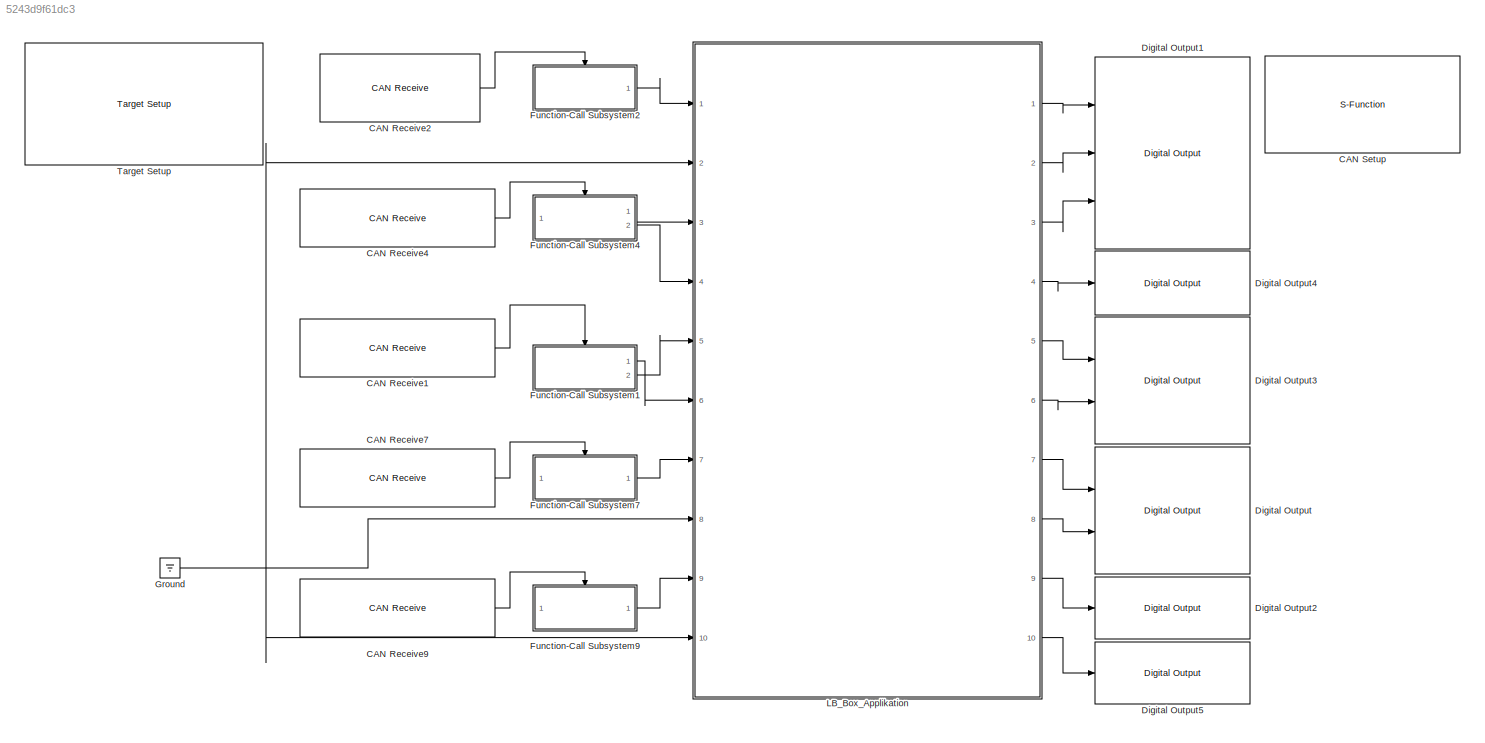
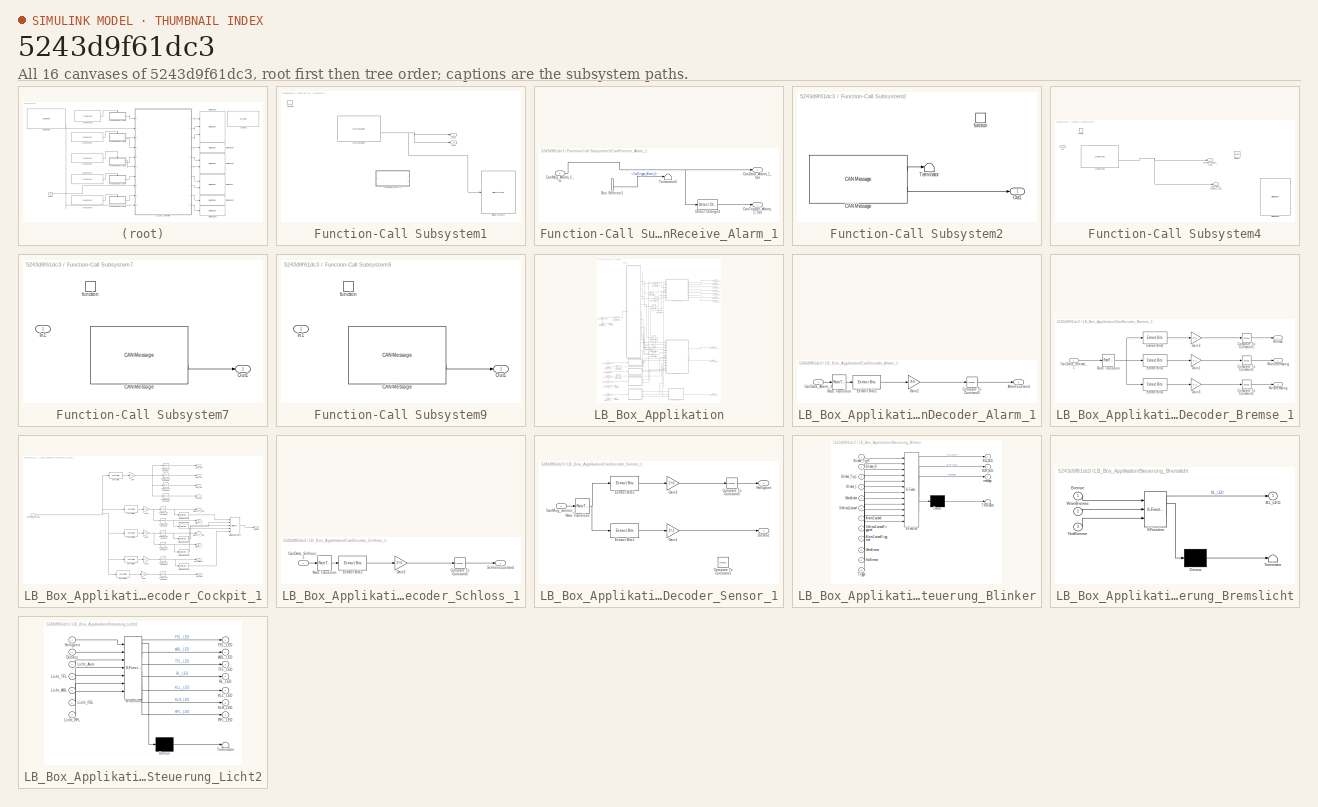
[diagram: thumbnail index - all 16 canvases of the model, root first then tree order]
MODEL slx_5243d9f61dc3
KIND model
CONFIG AbsTol = auto
CONFIG EnableMultiTasking = off
CONFIG FixedStep = auto
CONFIG MaxStep = auto
CONFIG MinStep = auto
CONFIG PreLoadFcn = waijung.modelPreload; % Required for working with Waijung Blockset. Do not remove.
CONFIG RelTol = 1e-3
CONFIG SampleTimeConstraint = Unconstrained
CONFIG Solver = FixedStepAuto
CONFIG SolverName = FixedStepAuto
CONFIG StartTime = 0.0
CONFIG StopTime = 10.0
BLOCK [Reference] CAN Receive1  REF=stm32f4_canbus_lib/CAN Receive
  Ports = [0, 1]
  SourceBlock = stm32f4_canbus_lib/CAN Receive
  SourceProductName = Waijung Blockset
  SourceType = stm32f4_can
BLOCK [Reference] CAN Receive2  REF=stm32f4_canbus_lib/CAN Receive
  Ports = [0, 1]
  SourceBlock = stm32f4_canbus_lib/CAN Receive
  SourceProductName = Waijung Blockset
  SourceType = stm32f4_can
BLOCK [Reference] CAN Receive4  REF=stm32f4_canbus_lib/CAN Receive
  Ports = [0, 1]
  SourceBlock = stm32f4_canbus_lib/CAN Receive
  SourceProductName = Waijung Blockset
  SourceType = stm32f4_can
BLOCK [Reference] CAN Receive7  REF=stm32f4_canbus_lib/CAN Receive
  Ports = [0, 1]
  SourceBlock = stm32f4_canbus_lib/CAN Receive
  SourceProductName = Waijung Blockset
  SourceType = stm32f4_can
BLOCK [Reference] CAN Receive9  REF=stm32f4_canbus_lib/CAN Receive
  Ports = [0, 1]
  SourceBlock = stm32f4_canbus_lib/CAN Receive
  SourceProductName = Waijung Blockset
  SourceType = stm32f4_can
BLOCK [S-Function] CAN Setup
  EnableBusSupport = off
  FunctionName = stm32f4_can
  Parameters = conf,canmodule,0,inputarray,outputarray,'','',confstr,sampletime,sampletimestr,blockid
  Ports = []
  SFcnIsStateOwnerBlock = off
  SFunctionDeploymentMode = off
BLOCK [Reference] Digital Output  REF=stm32f4_io_lib/Digital Output
  Ports = [2]
  SourceBlock = stm32f4_io_lib/Digital Output
  SourceProductName = Waijung Blockset
  SourceType = stm32f4_digital_output
BLOCK [Reference] Digital Output1  REF=stm32f4_io_lib/Digital Output
  Ports = [3]
  SourceBlock = stm32f4_io_lib/Digital Output
  SourceProductName = Waijung Blockset
  SourceType = stm32f4_digital_output
BLOCK [Reference] Digital Output2  REF=stm32f4_io_lib/Digital Output
  Ports = [1]
  SourceBlock = stm32f4_io_lib/Digital Output
  SourceProductName = Waijung Blockset
  SourceType = stm32f4_digital_output
BLOCK [Reference] Digital Output3  REF=stm32f4_io_lib/Digital Output
  Ports = [2]
  SourceBlock = stm32f4_io_lib/Digital Output
  SourceProductName = Waijung Blockset
  SourceType = stm32f4_digital_output
BLOCK [Reference] Digital Output4  REF=stm32f4_io_lib/Digital Output
  Ports = [1]
  SourceBlock = stm32f4_io_lib/Digital Output
  SourceProductName = Waijung Blockset
  SourceType = stm32f4_digital_output
BLOCK [Reference] Digital Output5  REF=stm32f4_io_lib/Digital Output
  Ports = [1]
  SourceBlock = stm32f4_io_lib/Digital Output
  SourceProductName = Waijung Blockset
  SourceType = stm32f4_digital_output
BLOCK [SubSystem] Function-Call Subsystem1
  Ports = [0, 2, 0, 1]
  RequestExecContextInheritance = off
  TreatAsAtomicUnit = on
  Variant = off
BLOCK [Reference] Function-Call Subsystem1/CAN Message  REF=stm32f4_canbus_lib/CAN Message
  Ports = [0, 2]
  SourceBlock = stm32f4_canbus_lib/CAN Message
  SourceProductName = Waijung Blockset
  SourceType = stm32f4_can
BLOCK [SubSystem] Function-Call Subsystem1/CanReceive_Alarm_1
  Commented = on
  Ports = [1, 2]
  RequestExecContextInheritance = off
  Variant = off
BLOCK [BusSelector] Function-Call Subsystem1/CanReceive_Alarm_1/Bus Selector1
  OutputAsBus = off
  OutputSignals = CanData_Alarm_1,CanTrigger_Alarm_1
  Ports = [1, 2]
BLOCK [Outport] Function-Call Subsystem1/CanReceive_Alarm_1/CanData_Alarm_1_Out
  IconDisplay = Port number
BLOCK [Inport] Function-Call Subsystem1/CanReceive_Alarm_1/CanMsg_Alarm_1_In
  IconDisplay = Port number
BLOCK [Outport] Function-Call Subsystem1/CanReceive_Alarm_1/CanTrigger_Alarm_1_Out
  IconDisplay = Port number
  Port = 2
BLOCK [Reference] Function-Call Subsystem1/CanReceive_Alarm_1/Detect Change4  REF=simulink/Logic and Bit
Operations/Detect
Change
  Ports = [1, 1]
  SourceBlock = simulink/Logic and Bit\nOperations/Detect\nChange
  SourceProductBaseCode = SL
  SourceType = Detect Change
BLOCK [Terminator] Function-Call Subsystem1/CanReceive_Alarm_1/Terminator5
BLOCK [Reference] Function-Call Subsystem1/Digital Output1  REF=stm32f4_io_lib/Digital Output
  Commented = on
  Ports = [1]
  SourceBlock = stm32f4_io_lib/Digital Output
  SourceProductName = Waijung Blockset
  SourceType = stm32f4_digital_output
BLOCK [Outport] Function-Call Subsystem1/Out1
  IconDisplay = Port number
BLOCK [Outport] Function-Call Subsystem1/Out2
  IconDisplay = Port number
  Port = 2
BLOCK [TriggerPort] Function-Call Subsystem1/function
  Ports = []
  StatesWhenEnabling = held
  TriggerType = function-call
  VariantControl = Variant
BLOCK [SubSystem] Function-Call Subsystem2
  Ports = [0, 1, 0, 1]
  RequestExecContextInheritance = off
  TreatAsAtomicUnit = on
  Variant = off
BLOCK [Reference] Function-Call Subsystem2/CAN Message  REF=stm32f4_canbus_lib/CAN Message
  Ports = [0, 2]
  SourceBlock = stm32f4_canbus_lib/CAN Message
  SourceProductName = Waijung Blockset
  SourceType = stm32f4_can
BLOCK [Outport] Function-Call Subsystem2/Out1
  IconDisplay = Port number
BLOCK [Terminator] Function-Call Subsystem2/Terminator
BLOCK [TriggerPort] Function-Call Subsystem2/function
  Ports = []
  StatesWhenEnabling = held
  TriggerType = function-call
  VariantControl = Variant
BLOCK [SubSystem] Function-Call Subsystem4
  Ports = [1, 2, 0, 1]
  RequestExecContextInheritance = off
  TreatAsAtomicUnit = on
  Variant = off
BLOCK [Reference] Function-Call Subsystem4/CAN Message  REF=stm32f4_canbus_lib/CAN Message
  Ports = [0, 2]
  SourceBlock = stm32f4_canbus_lib/CAN Message
  SourceProductName = Waijung Blockset
  SourceType = stm32f4_can
BLOCK [Outport] Function-Call Subsystem4/CanData_Schloss_1_Out
  IconDisplay = Port number
BLOCK [Outport] Function-Call Subsystem4/CanTrigger_Schloss_1_Out
  IconDisplay = Port number
  Port = 2
BLOCK [Reference] Function-Call Subsystem4/Digital Output1  REF=stm32f4_io_lib/Digital Output
  Commented = on
  Ports = [1]
  SourceBlock = stm32f4_io_lib/Digital Output
  SourceProductName = Waijung Blockset
  SourceType = stm32f4_digital_output
BLOCK [Inport] Function-Call Subsystem4/In1
  IconDisplay = Port number
BLOCK [Reference] Function-Call Subsystem4/Memory  REF=quarc_library/Discrete/Memory
  Commented = on
  Ports = [1, 1]
  SourceBlock = quarc_library/Discrete/Memory
  SourceProductName = QUARC Targets
  SourceType = Memory
BLOCK [TriggerPort] Function-Call Subsystem4/function
  Ports = []
  StatesWhenEnabling = held
  TriggerType = function-call
  VariantControl = Variant
BLOCK [SubSystem] Function-Call Subsystem7
  Ports = [1, 1, 0, 1]
  RequestExecContextInheritance = off
  TreatAsAtomicUnit = on
  Variant = off
BLOCK [Reference] Function-Call Subsystem7/CAN Message  REF=stm32f4_canbus_lib/CAN Message
  Ports = [0, 2]
  SourceBlock = stm32f4_canbus_lib/CAN Message
  SourceProductName = Waijung Blockset
  SourceType = stm32f4_can
BLOCK [Inport] Function-Call Subsystem7/In1
  IconDisplay = Port number
BLOCK [Outport] Function-Call Subsystem7/Out1
  IconDisplay = Port number
BLOCK [TriggerPort] Function-Call Subsystem7/function
  Ports = []
  StatesWhenEnabling = held
  TriggerType = function-call
  VariantControl = Variant
BLOCK [SubSystem] Function-Call Subsystem9
  Ports = [1, 1, 0, 1]
  RequestExecContextInheritance = off
  TreatAsAtomicUnit = on
  Variant = off
BLOCK [Reference] Function-Call Subsystem9/CAN Message  REF=stm32f4_canbus_lib/CAN Message
  Ports = [0, 2]
  SourceBlock = stm32f4_canbus_lib/CAN Message
  SourceProductName = Waijung Blockset
  SourceType = stm32f4_can
BLOCK [Inport] Function-Call Subsystem9/In1
  IconDisplay = Port number
BLOCK [Outport] Function-Call Subsystem9/Out1
  IconDisplay = Port number
BLOCK [TriggerPort] Function-Call Subsystem9/function
  Ports = []
  StatesWhenEnabling = held
  TriggerType = function-call
  VariantControl = Variant
BLOCK [Ground] Ground
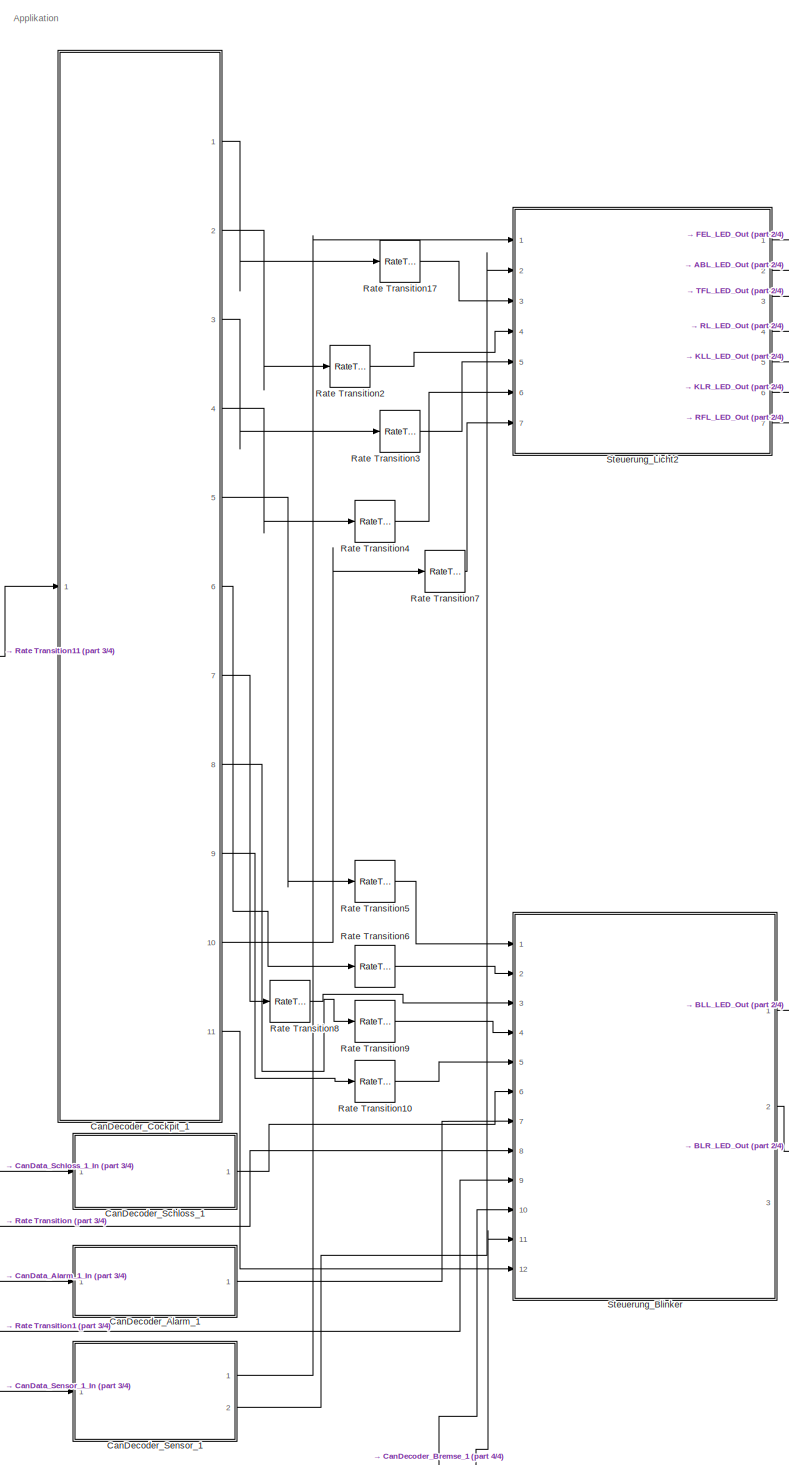
[diagram: LB_Box_Applikation - part 1/4, center side, full height]
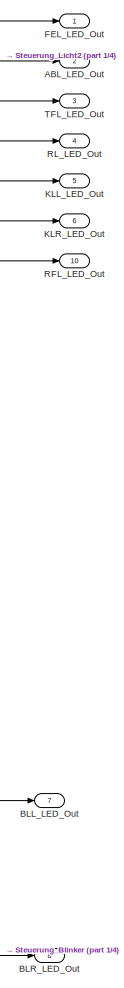
[diagram: LB_Box_Applikation - part 2/4, middle right region]
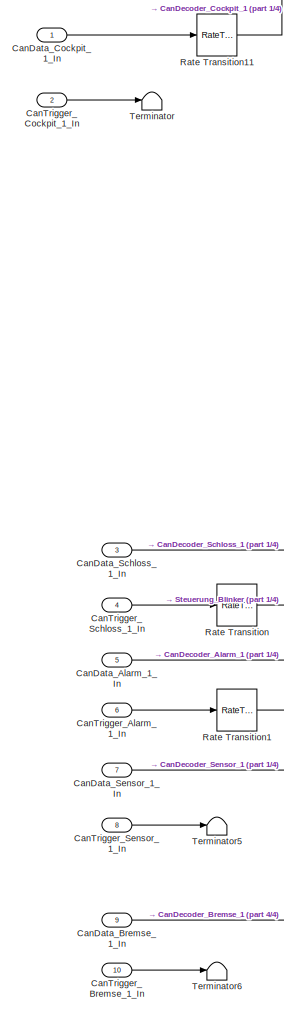
[diagram: LB_Box_Applikation - part 3/4, bottom left region]
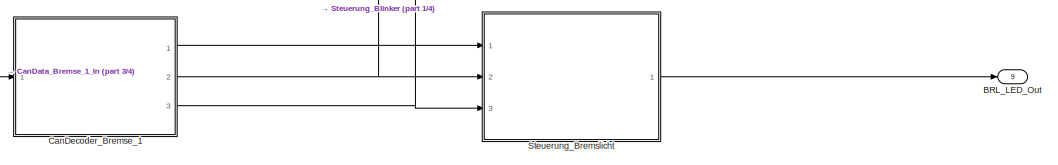
[diagram: LB_Box_Applikation - part 4/4, full width, bottom band]
BLOCK [SubSystem] LB_Box_Applikation
  Ports = [10, 10]
  RequestExecContextInheritance = off
  Variant = off
BLOCK [Outport] LB_Box_Applikation/ABL_LED_Out
  IconDisplay = Port number
  Port = 2
BLOCK [Outport] LB_Box_Applikation/BLL_LED_Out
  IconDisplay = Port number
  Port = 7
BLOCK [Outport] LB_Box_Applikation/BLR_LED_Out
  IconDisplay = Port number
  Port = 8
BLOCK [Outport] LB_Box_Applikation/BRL_LED_Out
  IconDisplay = Port number
  Port = 9
BLOCK [Inport] LB_Box_Applikation/CanData_Alarm_1_In
  IconDisplay = Port number
  Port = 5
BLOCK [Inport] LB_Box_Applikation/CanData_Bremse_1_In
  IconDisplay = Port number
  Port = 9
BLOCK [Inport] LB_Box_Applikation/CanData_Cockpit_1_In
  IconDisplay = Port number
BLOCK [Inport] LB_Box_Applikation/CanData_Schloss_1_In
  IconDisplay = Port number
  Port = 3
BLOCK [Inport] LB_Box_Applikation/CanData_Sensor_1_In
  IconDisplay = Port number
  Port = 7
BLOCK [SubSystem] LB_Box_Applikation/CanDecoder_Alarm_1
  Ports = [1, 1]
  RequestExecContextInheritance = off
  Variant = off
BLOCK [Outport] LB_Box_Applikation/CanDecoder_Alarm_1/AlarmZustand
  IconDisplay = Port number
BLOCK [Inport] LB_Box_Applikation/CanDecoder_Alarm_1/CanData_Alarm_1
  IconDisplay = Port number
BLOCK [Reference] LB_Box_Applikation/CanDecoder_Alarm_1/Compare To Constant5  REF=simulink/Logic and Bit
Operations/Compare
To Constant
  Ports = [1, 1]
  SourceBlock = simulink/Logic and Bit\nOperations/Compare\nTo Constant
  SourceProductBaseCode = SL
  SourceType = Compare To Constant
BLOCK [Reference] LB_Box_Applikation/CanDecoder_Alarm_1/Extract Bits2  REF=simulink/Logic and Bit
Operations/Extract Bits
  Ports = [1, 1]
  SourceBlock = simulink/Logic and Bit\nOperations/Extract Bits
  SourceProductBaseCode = SL
  SourceType = Extract Bits
BLOCK [Gain] LB_Box_Applikation/CanDecoder_Alarm_1/Gain2
  Gain = 2^-0
  OutDataTypeStr = Inherit: Inherit via internal rule
  ParamDataTypeStr = Inherit: Inherit via internal rule
  SaturateOnIntegerOverflow = off
BLOCK [RateTransition] LB_Box_Applikation/CanDecoder_Alarm_1/Rate Transition
  Deterministic = off
BLOCK [SubSystem] LB_Box_Applikation/CanDecoder_Bremse_1
  Ports = [1, 3]
  RequestExecContextInheritance = off
  Variant = off
BLOCK [Outport] LB_Box_Applikation/CanDecoder_Bremse_1/Bremse
  IconDisplay = Port number
BLOCK [Inport] LB_Box_Applikation/CanDecoder_Bremse_1/CanData_Bremse_1
  IconDisplay = Port number
BLOCK [Reference] LB_Box_Applikation/CanDecoder_Bremse_1/Compare To Constant1  REF=simulink/Logic and Bit
Operations/Compare
To Constant
  Ports = [1, 1]
  SourceBlock = simulink/Logic and Bit\nOperations/Compare\nTo Constant
  SourceProductBaseCode = SL
  SourceType = Compare To Constant
BLOCK [Reference] LB_Box_Applikation/CanDecoder_Bremse_1/Compare To Constant2  REF=simulink/Logic and Bit
Operations/Compare
To Constant
  Ports = [1, 1]
  SourceBlock = simulink/Logic and Bit\nOperations/Compare\nTo Constant
  SourceProductBaseCode = SL
  SourceType = Compare To Constant
BLOCK [Reference] LB_Box_Applikation/CanDecoder_Bremse_1/Compare To Constant5  REF=simulink/Logic and Bit
Operations/Compare
To Constant
  Ports = [1, 1]
  SourceBlock = simulink/Logic and Bit\nOperations/Compare\nTo Constant
  SourceProductBaseCode = SL
  SourceType = Compare To Constant
BLOCK [Reference] LB_Box_Applikation/CanDecoder_Bremse_1/Extract Bits1  REF=simulink/Logic and Bit
Operations/Extract Bits
  Ports = [1, 1]
  SourceBlock = simulink/Logic and Bit\nOperations/Extract Bits
  SourceProductBaseCode = SL
  SourceType = Extract Bits
BLOCK [Reference] LB_Box_Applikation/CanDecoder_Bremse_1/Extract Bits2  REF=simulink/Logic and Bit
Operations/Extract Bits
  Ports = [1, 1]
  SourceBlock = simulink/Logic and Bit\nOperations/Extract Bits
  SourceProductBaseCode = SL
  SourceType = Extract Bits
BLOCK [Reference] LB_Box_Applikation/CanDecoder_Bremse_1/Extract Bits3  REF=simulink/Logic and Bit
Operations/Extract Bits
  Ports = [1, 1]
  SourceBlock = simulink/Logic and Bit\nOperations/Extract Bits
  SourceProductBaseCode = SL
  SourceType = Extract Bits
BLOCK [Gain] LB_Box_Applikation/CanDecoder_Bremse_1/Gain1
  Gain = 2^-1
  OutDataTypeStr = Inherit: Inherit via internal rule
  ParamDataTypeStr = Inherit: Inherit via internal rule
  SaturateOnIntegerOverflow = off
BLOCK [Gain] LB_Box_Applikation/CanDecoder_Bremse_1/Gain2
  Gain = 2^-0
  OutDataTypeStr = Inherit: Inherit via internal rule
  ParamDataTypeStr = Inherit: Inherit via internal rule
  SaturateOnIntegerOverflow = off
BLOCK [Gain] LB_Box_Applikation/CanDecoder_Bremse_1/Gain3
  Gain = 2^-2
  OutDataTypeStr = Inherit: Inherit via internal rule
  ParamDataTypeStr = Inherit: Inherit via internal rule
  SaturateOnIntegerOverflow = off
BLOCK [Outport] LB_Box_Applikation/CanDecoder_Bremse_1/NotBremsung
  IconDisplay = Port number
  Port = 3
BLOCK [RateTransition] LB_Box_Applikation/CanDecoder_Bremse_1/Rate Transition
  Deterministic = off
BLOCK [Outport] LB_Box_Applikation/CanDecoder_Bremse_1/WarnBremsung
  IconDisplay = Port number
  Port = 2
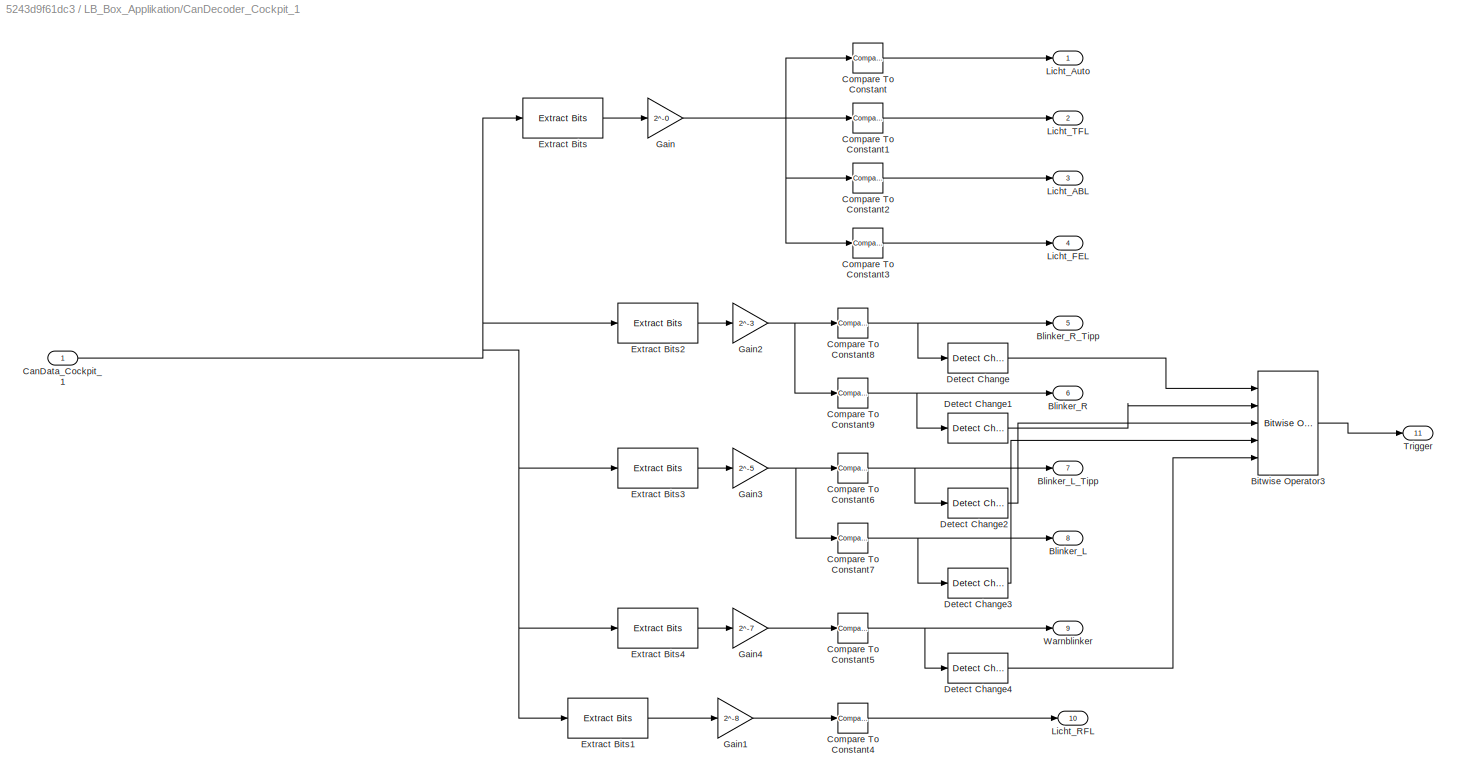
BLOCK [SubSystem] LB_Box_Applikation/CanDecoder_Cockpit_1
  Ports = [1, 11]
  RequestExecContextInheritance = off
  Variant = off
BLOCK [Reference] LB_Box_Applikation/CanDecoder_Cockpit_1/Bitwise Operator3  REF=simulink/Logic and Bit
Operations/Bitwise
Operator
  Ports = [5, 1]
  SourceBlock = simulink/Logic and Bit\nOperations/Bitwise\nOperator
  SourceProductBaseCode = SL
  SourceType = Bitwise Operator
BLOCK [Outport] LB_Box_Applikation/CanDecoder_Cockpit_1/Blinker_L
  IconDisplay = Port number
  Port = 8
BLOCK [Outport] LB_Box_Applikation/CanDecoder_Cockpit_1/Blinker_L_Tipp
  IconDisplay = Port number
  Port = 7
BLOCK [Outport] LB_Box_Applikation/CanDecoder_Cockpit_1/Blinker_R
  IconDisplay = Port number
  Port = 6
BLOCK [Outport] LB_Box_Applikation/CanDecoder_Cockpit_1/Blinker_R_Tipp
  IconDisplay = Port number
  Port = 5
BLOCK [Inport] LB_Box_Applikation/CanDecoder_Cockpit_1/CanData_Cockpit_1
  IconDisplay = Port number
BLOCK [Reference] LB_Box_Applikation/CanDecoder_Cockpit_1/Compare To Constant  REF=simulink/Logic and Bit
Operations/Compare
To Constant
  Ports = [1, 1]
  SourceBlock = simulink/Logic and Bit\nOperations/Compare\nTo Constant
  SourceProductBaseCode = SL
  SourceProductName = Simulink
  SourceType = Compare To Constant
BLOCK [Reference] LB_Box_Applikation/CanDecoder_Cockpit_1/Compare To Constant1  REF=simulink/Logic and Bit
Operations/Compare
To Constant
  Ports = [1, 1]
  SourceBlock = simulink/Logic and Bit\nOperations/Compare\nTo Constant
  SourceProductBaseCode = SL
  SourceProductName = Simulink
  SourceType = Compare To Constant
BLOCK [Reference] LB_Box_Applikation/CanDecoder_Cockpit_1/Compare To Constant2  REF=simulink/Logic and Bit
Operations/Compare
To Constant
  Ports = [1, 1]
  SourceBlock = simulink/Logic and Bit\nOperations/Compare\nTo Constant
  SourceProductBaseCode = SL
  SourceProductName = Simulink
  SourceType = Compare To Constant
BLOCK [Reference] LB_Box_Applikation/CanDecoder_Cockpit_1/Compare To Constant3  REF=simulink/Logic and Bit
Operations/Compare
To Constant
  Ports = [1, 1]
  SourceBlock = simulink/Logic and Bit\nOperations/Compare\nTo Constant
  SourceProductBaseCode = SL
  SourceProductName = Simulink
  SourceType = Compare To Constant
BLOCK [Reference] LB_Box_Applikation/CanDecoder_Cockpit_1/Compare To Constant4  REF=simulink/Logic and Bit
Operations/Compare
To Constant
  Ports = [1, 1]
  SourceBlock = simulink/Logic and Bit\nOperations/Compare\nTo Constant
  SourceProductBaseCode = SL
  SourceProductName = Simulink
  SourceType = Compare To Constant
BLOCK [Reference] LB_Box_Applikation/CanDecoder_Cockpit_1/Compare To Constant5  REF=simulink/Logic and Bit
Operations/Compare
To Constant
  Ports = [1, 1]
  SourceBlock = simulink/Logic and Bit\nOperations/Compare\nTo Constant
  SourceProductBaseCode = SL
  SourceProductName = Simulink
  SourceType = Compare To Constant
BLOCK [Reference] LB_Box_Applikation/CanDecoder_Cockpit_1/Compare To Constant6  REF=simulink/Logic and Bit
Operations/Compare
To Constant
  Ports = [1, 1]
  SourceBlock = simulink/Logic and Bit\nOperations/Compare\nTo Constant
  SourceProductBaseCode = SL
  SourceProductName = Simulink
  SourceType = Compare To Constant
BLOCK [Reference] LB_Box_Applikation/CanDecoder_Cockpit_1/Compare To Constant7  REF=simulink/Logic and Bit
Operations/Compare
To Constant
  Ports = [1, 1]
  SourceBlock = simulink/Logic and Bit\nOperations/Compare\nTo Constant
  SourceProductBaseCode = SL
  SourceProductName = Simulink
  SourceType = Compare To Constant
BLOCK [Reference] LB_Box_Applikation/CanDecoder_Cockpit_1/Compare To Constant8  REF=simulink/Logic and Bit
Operations/Compare
To Constant
  Ports = [1, 1]
  SourceBlock = simulink/Logic and Bit\nOperations/Compare\nTo Constant
  SourceProductBaseCode = SL
  SourceProductName = Simulink
  SourceType = Compare To Constant
BLOCK [Reference] LB_Box_Applikation/CanDecoder_Cockpit_1/Compare To Constant9  REF=simulink/Logic and Bit
Operations/Compare
To Constant
  Ports = [1, 1]
  SourceBlock = simulink/Logic and Bit\nOperations/Compare\nTo Constant
  SourceProductBaseCode = SL
  SourceProductName = Simulink
  SourceType = Compare To Constant
BLOCK [Reference] LB_Box_Applikation/CanDecoder_Cockpit_1/Detect Change  REF=simulink/Logic and Bit
Operations/Detect
Change
  Ports = [1, 1]
  SourceBlock = simulink/Logic and Bit\nOperations/Detect\nChange
  SourceProductBaseCode = SL
  SourceProductName = Simulink
  SourceType = Detect Change
BLOCK [Reference] LB_Box_Applikation/CanDecoder_Cockpit_1/Detect Change1  REF=simulink/Logic and Bit
Operations/Detect
Change
  Ports = [1, 1]
  SourceBlock = simulink/Logic and Bit\nOperations/Detect\nChange
  SourceProductBaseCode = SL
  SourceProductName = Simulink
  SourceType = Detect Change
BLOCK [Reference] LB_Box_Applikation/CanDecoder_Cockpit_1/Detect Change2  REF=simulink/Logic and Bit
Operations/Detect
Change
  Ports = [1, 1]
  SourceBlock = simulink/Logic and Bit\nOperations/Detect\nChange
  SourceProductBaseCode = SL
  SourceProductName = Simulink
  SourceType = Detect Change
BLOCK [Reference] LB_Box_Applikation/CanDecoder_Cockpit_1/Detect Change3  REF=simulink/Logic and Bit
Operations/Detect
Change
  Ports = [1, 1]
  SourceBlock = simulink/Logic and Bit\nOperations/Detect\nChange
  SourceProductBaseCode = SL
  SourceProductName = Simulink
  SourceType = Detect Change
BLOCK [Reference] LB_Box_Applikation/CanDecoder_Cockpit_1/Detect Change4  REF=simulink/Logic and Bit
Operations/Detect
Change
  Ports = [1, 1]
  SourceBlock = simulink/Logic and Bit\nOperations/Detect\nChange
  SourceProductBaseCode = SL
  SourceProductName = Simulink
  SourceType = Detect Change
BLOCK [Reference] LB_Box_Applikation/CanDecoder_Cockpit_1/Extract Bits  REF=simulink/Logic and Bit
Operations/Extract Bits
  Ports = [1, 1]
  SourceBlock = simulink/Logic and Bit\nOperations/Extract Bits
  SourceProductBaseCode = SL
  SourceProductName = Simulink
  SourceType = Extract Bits
BLOCK [Reference] LB_Box_Applikation/CanDecoder_Cockpit_1/Extract Bits1  REF=simulink/Logic and Bit
Operations/Extract Bits
  Ports = [1, 1]
  SourceBlock = simulink/Logic and Bit\nOperations/Extract Bits
  SourceProductBaseCode = SL
  SourceProductName = Simulink
  SourceType = Extract Bits
BLOCK [Reference] LB_Box_Applikation/CanDecoder_Cockpit_1/Extract Bits2  REF=simulink/Logic and Bit
Operations/Extract Bits
  Ports = [1, 1]
  SourceBlock = simulink/Logic and Bit\nOperations/Extract Bits
  SourceProductBaseCode = SL
  SourceProductName = Simulink
  SourceType = Extract Bits
BLOCK [Reference] LB_Box_Applikation/CanDecoder_Cockpit_1/Extract Bits3  REF=simulink/Logic and Bit
Operations/Extract Bits
  Ports = [1, 1]
  SourceBlock = simulink/Logic and Bit\nOperations/Extract Bits
  SourceProductBaseCode = SL
  SourceProductName = Simulink
  SourceType = Extract Bits
BLOCK [Reference] LB_Box_Applikation/CanDecoder_Cockpit_1/Extract Bits4  REF=simulink/Logic and Bit
Operations/Extract Bits
  Ports = [1, 1]
  SourceBlock = simulink/Logic and Bit\nOperations/Extract Bits
  SourceProductBaseCode = SL
  SourceProductName = Simulink
  SourceType = Extract Bits
BLOCK [Gain] LB_Box_Applikation/CanDecoder_Cockpit_1/Gain
  Gain = 2^-0
  OutDataTypeStr = Inherit: Inherit via internal rule
  ParamDataTypeStr = Inherit: Inherit via internal rule
  SaturateOnIntegerOverflow = off
BLOCK [Gain] LB_Box_Applikation/CanDecoder_Cockpit_1/Gain1
  Gain = 2^-8
  OutDataTypeStr = Inherit: Inherit via internal rule
  ParamDataTypeStr = Inherit: Inherit via internal rule
  SaturateOnIntegerOverflow = off
BLOCK [Gain] LB_Box_Applikation/CanDecoder_Cockpit_1/Gain2
  Gain = 2^-3
  OutDataTypeStr = Inherit: Inherit via internal rule
  ParamDataTypeStr = Inherit: Inherit via internal rule
  SaturateOnIntegerOverflow = off
BLOCK [Gain] LB_Box_Applikation/CanDecoder_Cockpit_1/Gain3
  Gain = 2^-5
  OutDataTypeStr = Inherit: Inherit via internal rule
  ParamDataTypeStr = Inherit: Inherit via internal rule
  SaturateOnIntegerOverflow = off
BLOCK [Gain] LB_Box_Applikation/CanDecoder_Cockpit_1/Gain4
  Gain = 2^-7
  OutDataTypeStr = Inherit: Inherit via internal rule
  ParamDataTypeStr = Inherit: Inherit via internal rule
  SaturateOnIntegerOverflow = off
BLOCK [Outport] LB_Box_Applikation/CanDecoder_Cockpit_1/Licht_ABL
  IconDisplay = Port number
  Port = 3
BLOCK [Outport] LB_Box_Applikation/CanDecoder_Cockpit_1/Licht_Auto
  IconDisplay = Port number
BLOCK [Outport] LB_Box_Applikation/CanDecoder_Cockpit_1/Licht_FEL
  IconDisplay = Port number
  Port = 4
BLOCK [Outport] LB_Box_Applikation/CanDecoder_Cockpit_1/Licht_RFL
  IconDisplay = Port number
  Port = 10
BLOCK [Outport] LB_Box_Applikation/CanDecoder_Cockpit_1/Licht_TFL
  IconDisplay = Port number
  Port = 2
BLOCK [Outport] LB_Box_Applikation/CanDecoder_Cockpit_1/Trigger
  IconDisplay = Port number
  Port = 11
BLOCK [Outport] LB_Box_Applikation/CanDecoder_Cockpit_1/Warnblinker
  IconDisplay = Port number
  Port = 9
BLOCK [SubSystem] LB_Box_Applikation/CanDecoder_Schloss_1
  Ports = [1, 1]
  RequestExecContextInheritance = off
  Variant = off
BLOCK [Inport] LB_Box_Applikation/CanDecoder_Schloss_1/CanData_Schloss_1
  IconDisplay = Port number
BLOCK [Reference] LB_Box_Applikation/CanDecoder_Schloss_1/Compare To Constant5  REF=simulink/Logic and Bit
Operations/Compare
To Constant
  Ports = [1, 1]
  SourceBlock = simulink/Logic and Bit\nOperations/Compare\nTo Constant
  SourceProductBaseCode = SL
  SourceType = Compare To Constant
BLOCK [Reference] LB_Box_Applikation/CanDecoder_Schloss_1/Extract Bits2  REF=simulink/Logic and Bit
Operations/Extract Bits
  Ports = [1, 1]
  SourceBlock = simulink/Logic and Bit\nOperations/Extract Bits
  SourceProductBaseCode = SL
  SourceType = Extract Bits
BLOCK [Gain] LB_Box_Applikation/CanDecoder_Schloss_1/Gain2
  Gain = 2^-0
  OutDataTypeStr = Inherit: Inherit via internal rule
  ParamDataTypeStr = Inherit: Inherit via internal rule
  SaturateOnIntegerOverflow = off
BLOCK [RateTransition] LB_Box_Applikation/CanDecoder_Schloss_1/Rate Transition
  Deterministic = off
BLOCK [Outport] LB_Box_Applikation/CanDecoder_Schloss_1/SchliessZustand
  IconDisplay = Port number
BLOCK [SubSystem] LB_Box_Applikation/CanDecoder_Sensor_1
  Ports = [1, 2]
  RequestExecContextInheritance = off
  Variant = off
BLOCK [Inport] LB_Box_Applikation/CanDecoder_Sensor_1/CanMsg_Sensor_1
  IconDisplay = Port number
BLOCK [Reference] LB_Box_Applikation/CanDecoder_Sensor_1/Compare To Constant1  REF=simulink/Logic and Bit
Operations/Compare
To Constant
  Commented = on
  Ports = [1, 1]
  SourceBlock = simulink/Logic and Bit\nOperations/Compare\nTo Constant
  SourceProductBaseCode = SL
  SourceType = Compare To Constant
BLOCK [Reference] LB_Box_Applikation/CanDecoder_Sensor_1/Compare To Constant5  REF=simulink/Logic and Bit
Operations/Compare
To Constant
  Ports = [1, 1]
  SourceBlock = simulink/Logic and Bit\nOperations/Compare\nTo Constant
  SourceProductBaseCode = SL
  SourceType = Compare To Constant
BLOCK [Outport] LB_Box_Applikation/CanDecoder_Sensor_1/Distanz
  IconDisplay = Port number
  Port = 2
BLOCK [Reference] LB_Box_Applikation/CanDecoder_Sensor_1/Extract Bits1  REF=simulink/Logic and Bit
Operations/Extract Bits
  Ports = [1, 1]
  SourceBlock = simulink/Logic and Bit\nOperations/Extract Bits
  SourceProductBaseCode = SL
  SourceType = Extract Bits
BLOCK [Reference] LB_Box_Applikation/CanDecoder_Sensor_1/Extract Bits2  REF=simulink/Logic and Bit
Operations/Extract Bits
  Ports = [1, 1]
  SourceBlock = simulink/Logic and Bit\nOperations/Extract Bits
  SourceProductBaseCode = SL
  SourceType = Extract Bits
BLOCK [Gain] LB_Box_Applikation/CanDecoder_Sensor_1/Gain1
  Gain = 2^-1
  OutDataTypeStr = Inherit: Inherit via internal rule
  ParamDataTypeStr = Inherit: Inherit via internal rule
  SaturateOnIntegerOverflow = off
BLOCK [Gain] LB_Box_Applikation/CanDecoder_Sensor_1/Gain2
  Gain = 2^-0
  OutDataTypeStr = Inherit: Inherit via internal rule
  ParamDataTypeStr = Inherit: Inherit via internal rule
  SaturateOnIntegerOverflow = off
BLOCK [Outport] LB_Box_Applikation/CanDecoder_Sensor_1/Helligkeit
  IconDisplay = Port number
BLOCK [RateTransition] LB_Box_Applikation/CanDecoder_Sensor_1/Rate Transition
  Deterministic = off
BLOCK [Inport] LB_Box_Applikation/CanTrigger_Alarm_1_In
  IconDisplay = Port number
  Port = 6
BLOCK [Inport] LB_Box_Applikation/CanTrigger_Bremse_1_In
  IconDisplay = Port number
  Port = 10
BLOCK [Inport] LB_Box_Applikation/CanTrigger_Cockpit_1_In
  IconDisplay = Port number
  Port = 2
BLOCK [Inport] LB_Box_Applikation/CanTrigger_Schloss_1_In
  IconDisplay = Port number
  Port = 4
BLOCK [Inport] LB_Box_Applikation/CanTrigger_Sensor_1_In
  IconDisplay = Port number
  Port = 8
BLOCK [Outport] LB_Box_Applikation/FEL_LED_Out
  IconDisplay = Port number
BLOCK [Outport] LB_Box_Applikation/KLL_LED_Out
  IconDisplay = Port number
  Port = 5
BLOCK [Outport] LB_Box_Applikation/KLR_LED_Out
  IconDisplay = Port number
  Port = 6
BLOCK [Outport] LB_Box_Applikation/RFL_LED_Out
  IconDisplay = Port number
  Port = 10
BLOCK [Outport] LB_Box_Applikation/RL_LED_Out
  IconDisplay = Port number
  Port = 4
BLOCK [RateTransition] LB_Box_Applikation/Rate Transition
  Deterministic = off
BLOCK [RateTransition] LB_Box_Applikation/Rate Transition1
  Deterministic = off
BLOCK [RateTransition] LB_Box_Applikation/Rate Transition10
  Deterministic = off
BLOCK [RateTransition] LB_Box_Applikation/Rate Transition11
  Deterministic = off
BLOCK [RateTransition] LB_Box_Applikation/Rate Transition17
  Deterministic = off
BLOCK [RateTransition] LB_Box_Applikation/Rate Transition2
  Deterministic = off
BLOCK [RateTransition] LB_Box_Applikation/Rate Transition3
  Deterministic = off
BLOCK [RateTransition] LB_Box_Applikation/Rate Transition4
  Deterministic = off
BLOCK [RateTransition] LB_Box_Applikation/Rate Transition5
  Deterministic = off
BLOCK [RateTransition] LB_Box_Applikation/Rate Transition6
  Deterministic = off
BLOCK [RateTransition] LB_Box_Applikation/Rate Transition7
  Deterministic = off
BLOCK [RateTransition] LB_Box_Applikation/Rate Transition8
  Deterministic = off
BLOCK [RateTransition] LB_Box_Applikation/Rate Transition9
  Deterministic = off
BLOCK [SubSystem] LB_Box_Applikation/Steuerung_Blinker
  ErrorFcn = Stateflow.Translate.translate
  PermitHierarchicalResolution = ExplicitOnly
  Ports = [12, 3]
  RequestExecContextInheritance = off
  SFBlockType = Chart
  TreatAsAtomicUnit = on
  Variant = off
BLOCK [Demux] LB_Box_Applikation/Steuerung_Blinker/ Demux 
  DisplayOption = bar
  Outputs = 1
  Ports = [1, 1]
BLOCK [S-Function] LB_Box_Applikation/Steuerung_Blinker/ SFunction 
  EnableBusSupport = on
  FunctionName = sf_sfun
  OutputPortMessageModes = n,n,n,m
  PortCounts = [12 4]
  Ports = [12, 4]
  SFcnIsStateOwnerBlock = off
  SFunctionDeploymentMode = off
  Tag = Stateflow S-Function LeuchtenBox 3
BLOCK [Terminator] LB_Box_Applikation/Steuerung_Blinker/ Terminator 
BLOCK [Inport] LB_Box_Applikation/Steuerung_Blinker/AlarmZustand
  IconDisplay = Port number
  Port = 7
BLOCK [Inport] LB_Box_Applikation/Steuerung_Blinker/AlarmZustandTriggered
  IconDisplay = Port number
  Port = 9
BLOCK [Outport] LB_Box_Applikation/Steuerung_Blinker/BLL_LED
  IconDisplay = Port number
BLOCK [Outport] LB_Box_Applikation/Steuerung_Blinker/BLR_LED
  IconDisplay = Port number
  Port = 2
BLOCK [Inport] LB_Box_Applikation/Steuerung_Blinker/Blinker_L
  IconDisplay = Port number
  Port = 4
BLOCK [Inport] LB_Box_Applikation/Steuerung_Blinker/Blinker_R
  IconDisplay = Port number
  Port = 2
BLOCK [Inport] LB_Box_Applikation/Steuerung_Blinker/Blinker_Tip_L
  IconDisplay = Port number
  Port = 3
BLOCK [Inport] LB_Box_Applikation/Steuerung_Blinker/Blinker_Tip_R
  IconDisplay = Port number
BLOCK [Inport] LB_Box_Applikation/Steuerung_Blinker/NotBremse
  IconDisplay = Port number
  Port = 11
BLOCK [Inport] LB_Box_Applikation/Steuerung_Blinker/SchliessZustand
  IconDisplay = Port number
  Port = 6
BLOCK [Inport] LB_Box_Applikation/Steuerung_Blinker/SchliessZustandTriggered
  IconDisplay = Port number
  Port = 8
BLOCK [Inport] LB_Box_Applikation/Steuerung_Blinker/Trigger
  IconDisplay = Port number
  Port = 12
BLOCK [Inport] LB_Box_Applikation/Steuerung_Blinker/WarnBremse
  IconDisplay = Port number
  Port = 10
BLOCK [Inport] LB_Box_Applikation/Steuerung_Blinker/Warnblinker
  IconDisplay = Port number
  Port = 5
BLOCK [Outport] LB_Box_Applikation/Steuerung_Blinker/message
  IconDisplay = Port number
  Port = 3
BLOCK [SubSystem] LB_Box_Applikation/Steuerung_Bremslicht
  ErrorFcn = Stateflow.Translate.translate
  PermitHierarchicalResolution = ExplicitOnly
  Ports = [3, 1]
  RequestExecContextInheritance = off
  SFBlockType = Chart
  TreatAsAtomicUnit = on
  Variant = off
BLOCK [Demux] LB_Box_Applikation/Steuerung_Bremslicht/ Demux 
  DisplayOption = bar
  Outputs = 1
  Ports = [1, 1]
BLOCK [S-Function] LB_Box_Applikation/Steuerung_Bremslicht/ SFunction 
  EnableBusSupport = on
  FunctionName = sf_sfun
  PortCounts = [3 2]
  Ports = [3, 2]
  SFcnIsStateOwnerBlock = off
  SFunctionDeploymentMode = off
  Tag = Stateflow S-Function LeuchtenBox 4
BLOCK [Terminator] LB_Box_Applikation/Steuerung_Bremslicht/ Terminator 
BLOCK [Outport] LB_Box_Applikation/Steuerung_Bremslicht/BL_LED
  IconDisplay = Port number
BLOCK [Inport] LB_Box_Applikation/Steuerung_Bremslicht/Bremse
  IconDisplay = Port number
BLOCK [Inport] LB_Box_Applikation/Steuerung_Bremslicht/NotBremse
  IconDisplay = Port number
  Port = 3
BLOCK [Inport] LB_Box_Applikation/Steuerung_Bremslicht/WarnBremse
  IconDisplay = Port number
  Port = 2
BLOCK [SubSystem] LB_Box_Applikation/Steuerung_Licht2
  ErrorFcn = Stateflow.Translate.translate
  PermitHierarchicalResolution = ExplicitOnly
  Ports = [7, 7]
  RequestExecContextInheritance = off
  SFBlockType = Chart
  TreatAsAtomicUnit = on
  Variant = off
BLOCK [Demux] LB_Box_Applikation/Steuerung_Licht2/ Demux 
  DisplayOption = bar
  Outputs = 1
  Ports = [1, 1]
BLOCK [S-Function] LB_Box_Applikation/Steuerung_Licht2/ SFunction 
  EnableBusSupport = on
  FunctionName = sf_sfun
  PortCounts = [7 8]
  Ports = [7, 8]
  SFcnIsStateOwnerBlock = off
  SFunctionDeploymentMode = off
  Tag = Stateflow S-Function LeuchtenBox 11
BLOCK [Terminator] LB_Box_Applikation/Steuerung_Licht2/ Terminator 
BLOCK [Outport] LB_Box_Applikation/Steuerung_Licht2/ABL_LED
  IconDisplay = Port number
  Port = 2
BLOCK [Inport] LB_Box_Applikation/Steuerung_Licht2/Distanz
  IconDisplay = Port number
  Port = 2
BLOCK [Outport] LB_Box_Applikation/Steuerung_Licht2/FEL_LED
  IconDisplay = Port number
BLOCK [Inport] LB_Box_Applikation/Steuerung_Licht2/Helligkeit
  IconDisplay = Port number
BLOCK [Outport] LB_Box_Applikation/Steuerung_Licht2/KLL_LED
  IconDisplay = Port number
  Port = 5
  VectorParamsAs1DForOutWhenUnconnected = on
BLOCK [Outport] LB_Box_Applikation/Steuerung_Licht2/KLR_LED
  IconDisplay = Port number
  Port = 6
  VectorParamsAs1DForOutWhenUnconnected = on
BLOCK [Inport] LB_Box_Applikation/Steuerung_Licht2/Licht_ABL
  IconDisplay = Port number
  Port = 5
BLOCK [Inport] LB_Box_Applikation/Steuerung_Licht2/Licht_Auto
  IconDisplay = Port number
  Port = 3
BLOCK [Inport] LB_Box_Applikation/Steuerung_Licht2/Licht_FEL
  IconDisplay = Port number
  Port = 6
BLOCK [Inport] LB_Box_Applikation/Steuerung_Licht2/Licht_RFL
  IconDisplay = Port number
  Port = 7
BLOCK [Inport] LB_Box_Applikation/Steuerung_Licht2/Licht_TFL
  IconDisplay = Port number
  Port = 4
BLOCK [Outport] LB_Box_Applikation/Steuerung_Licht2/RFL_LED
  IconDisplay = Port number
  Port = 7
BLOCK [Outport] LB_Box_Applikation/Steuerung_Licht2/RL_LED
  IconDisplay = Port number
  Port = 4
  VectorParamsAs1DForOutWhenUnconnected = on
BLOCK [Outport] LB_Box_Applikation/Steuerung_Licht2/TFL_LED
  IconDisplay = Port number
  Port = 3
BLOCK [Outport] LB_Box_Applikation/TFL_LED_Out
  IconDisplay = Port number
  Port = 3
BLOCK [Terminator] LB_Box_Applikation/Terminator
BLOCK [Terminator] LB_Box_Applikation/Terminator5
BLOCK [Terminator] LB_Box_Applikation/Terminator6
BLOCK [Reference] Target Setup  REF=stm32f4_device_config_lib/Target Setup
  Ports = []
  Priority = 100
  SourceBlock = stm32f4_device_config_lib/Target Setup
  SourceProductName = Waijung Blockset
  SourceType = stm32f4_target_setup
ANNOTATION LB_Box_Applikation: Applikation
LINE CAN Receive1:1 -> Function-Call Subsystem1:trigger
LINE CAN Receive2:1 -> Function-Call Subsystem2:trigger
LINE CAN Receive4:1 -> Function-Call Subsystem4:trigger
LINE CAN Receive7:1 -> Function-Call Subsystem7:trigger
LINE CAN Receive9:1 -> Function-Call Subsystem9:trigger
NET Function-Call Subsystem1/CAN Message:2 -> Function-Call Subsystem1/Digital Output1:1, Function-Call Subsystem1/Out1:1, Function-Call Subsystem1/Out2:1
LINE Function-Call Subsystem1/CanReceive_Alarm_1/Bus Selector1:2 -> Function-Call Subsystem1/CanReceive_Alarm_1/Terminator5:1
NET Function-Call Subsystem1/CanReceive_Alarm_1/CanMsg_Alarm_1_In:1 -> Function-Call Subsystem1/CanReceive_Alarm_1/CanData_Alarm_1_Out:1, Function-Call Subsystem1/CanReceive_Alarm_1/Detect Change4:1
LINE Function-Call Subsystem1/CanReceive_Alarm_1/Detect Change4:1 -> Function-Call Subsystem1/CanReceive_Alarm_1/CanTrigger_Alarm_1_Out:1
LINE Function-Call Subsystem1:1 -> LB_Box_Applikation:6
LINE Function-Call Subsystem1:2 -> LB_Box_Applikation:5
LINE Function-Call Subsystem2/CAN Message:1 -> Function-Call Subsystem2/Terminator:1
LINE Function-Call Subsystem2/CAN Message:2 -> Function-Call Subsystem2/Out1:1
LINE Function-Call Subsystem2:1 -> LB_Box_Applikation:1
NET Function-Call Subsystem4/CAN Message:2 -> Function-Call Subsystem4/CanData_Schloss_1_Out:1, Function-Call Subsystem4/CanTrigger_Schloss_1_Out:1
LINE Function-Call Subsystem4:1 -> LB_Box_Applikation:3
LINE Function-Call Subsystem4:2 -> LB_Box_Applikation:4
LINE Function-Call Subsystem7/CAN Message:2 -> Function-Call Subsystem7/Out1:1
LINE Function-Call Subsystem7:1 -> LB_Box_Applikation:7
LINE Function-Call Subsystem9/CAN Message:2 -> Function-Call Subsystem9/Out1:1
LINE Function-Call Subsystem9:1 -> LB_Box_Applikation:9
NET Ground:1 -> LB_Box_Applikation:10, LB_Box_Applikation:2, LB_Box_Applikation:8
LINE LB_Box_Applikation/CanData_Alarm_1_In:1 -> LB_Box_Applikation/CanDecoder_Alarm_1:1
LINE LB_Box_Applikation/CanData_Bremse_1_In:1 -> LB_Box_Applikation/CanDecoder_Bremse_1:1
LINE LB_Box_Applikation/CanData_Cockpit_1_In:1 -> LB_Box_Applikation/Rate Transition11:1
LINE LB_Box_Applikation/CanData_Schloss_1_In:1 -> LB_Box_Applikation/CanDecoder_Schloss_1:1
LINE LB_Box_Applikation/CanData_Sensor_1_In:1 -> LB_Box_Applikation/CanDecoder_Sensor_1:1
LINE LB_Box_Applikation/CanDecoder_Alarm_1/CanData_Alarm_1:1 -> LB_Box_Applikation/CanDecoder_Alarm_1/Rate Transition:1
LINE LB_Box_Applikation/CanDecoder_Alarm_1/Compare To Constant5:1 -> LB_Box_Applikation/CanDecoder_Alarm_1/AlarmZustand:1
LINE LB_Box_Applikation/CanDecoder_Alarm_1/Extract Bits2:1 -> LB_Box_Applikation/CanDecoder_Alarm_1/Gain2:1
LINE LB_Box_Applikation/CanDecoder_Alarm_1/Gain2:1 -> LB_Box_Applikation/CanDecoder_Alarm_1/Compare To Constant5:1
LINE LB_Box_Applikation/CanDecoder_Alarm_1/Rate Transition:1 -> LB_Box_Applikation/CanDecoder_Alarm_1/Extract Bits2:1
LINE LB_Box_Applikation/CanDecoder_Alarm_1:1 -> LB_Box_Applikation/Steuerung_Blinker:7
LINE LB_Box_Applikation/CanDecoder_Bremse_1/CanData_Bremse_1:1 -> LB_Box_Applikation/CanDecoder_Bremse_1/Rate Transition:1
LINE LB_Box_Applikation/CanDecoder_Bremse_1/Compare To Constant1:1 -> LB_Box_Applikation/CanDecoder_Bremse_1/WarnBremsung:1
LINE LB_Box_Applikation/CanDecoder_Bremse_1/Compare To Constant2:1 -> LB_Box_Applikation/CanDecoder_Bremse_1/NotBremsung:1
LINE LB_Box_Applikation/CanDecoder_Bremse_1/Compare To Constant5:1 -> LB_Box_Applikation/CanDecoder_Bremse_1/Bremse:1
LINE LB_Box_Applikation/CanDecoder_Bremse_1/Extract Bits1:1 -> LB_Box_Applikation/CanDecoder_Bremse_1/Gain1:1
LINE LB_Box_Applikation/CanDecoder_Bremse_1/Extract Bits2:1 -> LB_Box_Applikation/CanDecoder_Bremse_1/Gain2:1
LINE LB_Box_Applikation/CanDecoder_Bremse_1/Extract Bits3:1 -> LB_Box_Applikation/CanDecoder_Bremse_1/Gain3:1
LINE LB_Box_Applikation/CanDecoder_Bremse_1/Gain1:1 -> LB_Box_Applikation/CanDecoder_Bremse_1/Compare To Constant1:1
LINE LB_Box_Applikation/CanDecoder_Bremse_1/Gain2:1 -> LB_Box_Applikation/CanDecoder_Bremse_1/Compare To Constant5:1
LINE LB_Box_Applikation/CanDecoder_Bremse_1/Gain3:1 -> LB_Box_Applikation/CanDecoder_Bremse_1/Compare To Constant2:1
NET LB_Box_Applikation/CanDecoder_Bremse_1/Rate Transition:1 -> LB_Box_Applikation/CanDecoder_Bremse_1/Extract Bits1:1, LB_Box_Applikation/CanDecoder_Bremse_1/Extract Bits2:1, LB_Box_Applikation/CanDecoder_Bremse_1/Extract Bits3:1
LINE LB_Box_Applikation/CanDecoder_Bremse_1:1 -> LB_Box_Applikation/Steuerung_Bremslicht:1
NET LB_Box_Applikation/CanDecoder_Bremse_1:2 -> LB_Box_Applikation/Steuerung_Blinker:10, LB_Box_Applikation/Steuerung_Bremslicht:2
NET LB_Box_Applikation/CanDecoder_Bremse_1:3 -> LB_Box_Applikation/Steuerung_Blinker:11, LB_Box_Applikation/Steuerung_Bremslicht:3
LINE LB_Box_Applikation/CanDecoder_Cockpit_1/Bitwise Operator3:1 -> LB_Box_Applikation/CanDecoder_Cockpit_1/Trigger:1
NET LB_Box_Applikation/CanDecoder_Cockpit_1/CanData_Cockpit_1:1 -> LB_Box_Applikation/CanDecoder_Cockpit_1/Extract Bits1:1, LB_Box_Applikation/CanDecoder_Cockpit_1/Extract Bits2:1, LB_Box_Applikation/CanDecoder_Cockpit_1/Extract Bits3:1, LB_Box_Applikation/CanDecoder_Cockpit_1/Extract Bits4:1, LB_Box_Applikation/CanDecoder_Cockpit_1/Extract Bits:1
LINE LB_Box_Applikation/CanDecoder_Cockpit_1/Compare To Constant1:1 -> LB_Box_Applikation/CanDecoder_Cockpit_1/Licht_TFL:1
LINE LB_Box_Applikation/CanDecoder_Cockpit_1/Compare To Constant2:1 -> LB_Box_Applikation/CanDecoder_Cockpit_1/Licht_ABL:1
LINE LB_Box_Applikation/CanDecoder_Cockpit_1/Compare To Constant3:1 -> LB_Box_Applikation/CanDecoder_Cockpit_1/Licht_FEL:1
LINE LB_Box_Applikation/CanDecoder_Cockpit_1/Compare To Constant4:1 -> LB_Box_Applikation/CanDecoder_Cockpit_1/Licht_RFL:1
NET LB_Box_Applikation/CanDecoder_Cockpit_1/Compare To Constant5:1 -> LB_Box_Applikation/CanDecoder_Cockpit_1/Detect Change4:1, LB_Box_Applikation/CanDecoder_Cockpit_1/Warnblinker:1
NET LB_Box_Applikation/CanDecoder_Cockpit_1/Compare To Constant6:1 -> LB_Box_Applikation/CanDecoder_Cockpit_1/Blinker_L_Tipp:1, LB_Box_Applikation/CanDecoder_Cockpit_1/Detect Change2:1
NET LB_Box_Applikation/CanDecoder_Cockpit_1/Compare To Constant7:1 -> LB_Box_Applikation/CanDecoder_Cockpit_1/Blinker_L:1, LB_Box_Applikation/CanDecoder_Cockpit_1/Detect Change3:1
NET LB_Box_Applikation/CanDecoder_Cockpit_1/Compare To Constant8:1 -> LB_Box_Applikation/CanDecoder_Cockpit_1/Blinker_R_Tipp:1, LB_Box_Applikation/CanDecoder_Cockpit_1/Detect Change:1
NET LB_Box_Applikation/CanDecoder_Cockpit_1/Compare To Constant9:1 -> LB_Box_Applikation/CanDecoder_Cockpit_1/Blinker_R:1, LB_Box_Applikation/CanDecoder_Cockpit_1/Detect Change1:1
LINE LB_Box_Applikation/CanDecoder_Cockpit_1/Compare To Constant:1 -> LB_Box_Applikation/CanDecoder_Cockpit_1/Licht_Auto:1
LINE LB_Box_Applikation/CanDecoder_Cockpit_1/Detect Change1:1 -> LB_Box_Applikation/CanDecoder_Cockpit_1/Bitwise Operator3:2
LINE LB_Box_Applikation/CanDecoder_Cockpit_1/Detect Change2:1 -> LB_Box_Applikation/CanDecoder_Cockpit_1/Bitwise Operator3:3
LINE LB_Box_Applikation/CanDecoder_Cockpit_1/Detect Change3:1 -> LB_Box_Applikation/CanDecoder_Cockpit_1/Bitwise Operator3:4
LINE LB_Box_Applikation/CanDecoder_Cockpit_1/Detect Change4:1 -> LB_Box_Applikation/CanDecoder_Cockpit_1/Bitwise Operator3:5
LINE LB_Box_Applikation/CanDecoder_Cockpit_1/Detect Change:1 -> LB_Box_Applikation/CanDecoder_Cockpit_1/Bitwise Operator3:1
LINE LB_Box_Applikation/CanDecoder_Cockpit_1/Extract Bits1:1 -> LB_Box_Applikation/CanDecoder_Cockpit_1/Gain1:1
LINE LB_Box_Applikation/CanDecoder_Cockpit_1/Extract Bits2:1 -> LB_Box_Applikation/CanDecoder_Cockpit_1/Gain2:1
LINE LB_Box_Applikation/CanDecoder_Cockpit_1/Extract Bits3:1 -> LB_Box_Applikation/CanDecoder_Cockpit_1/Gain3:1
LINE LB_Box_Applikation/CanDecoder_Cockpit_1/Extract Bits4:1 -> LB_Box_Applikation/CanDecoder_Cockpit_1/Gain4:1
LINE LB_Box_Applikation/CanDecoder_Cockpit_1/Extract Bits:1 -> LB_Box_Applikation/CanDecoder_Cockpit_1/Gain:1
LINE LB_Box_Applikation/CanDecoder_Cockpit_1/Gain1:1 -> LB_Box_Applikation/CanDecoder_Cockpit_1/Compare To Constant4:1
NET LB_Box_Applikation/CanDecoder_Cockpit_1/Gain2:1 -> LB_Box_Applikation/CanDecoder_Cockpit_1/Compare To Constant8:1, LB_Box_Applikation/CanDecoder_Cockpit_1/Compare To Constant9:1
NET LB_Box_Applikation/CanDecoder_Cockpit_1/Gain3:1 -> LB_Box_Applikation/CanDecoder_Cockpit_1/Compare To Constant6:1, LB_Box_Applikation/CanDecoder_Cockpit_1/Compare To Constant7:1
LINE LB_Box_Applikation/CanDecoder_Cockpit_1/Gain4:1 -> LB_Box_Applikation/CanDecoder_Cockpit_1/Compare To Constant5:1
NET LB_Box_Applikation/CanDecoder_Cockpit_1/Gain:1 -> LB_Box_Applikation/CanDecoder_Cockpit_1/Compare To Constant1:1, LB_Box_Applikation/CanDecoder_Cockpit_1/Compare To Constant2:1, LB_Box_Applikation/CanDecoder_Cockpit_1/Compare To Constant3:1, LB_Box_Applikation/CanDecoder_Cockpit_1/Compare To Constant:1
LINE LB_Box_Applikation/CanDecoder_Cockpit_1:1 -> LB_Box_Applikation/Rate Transition17:1
LINE LB_Box_Applikation/CanDecoder_Cockpit_1:10 -> LB_Box_Applikation/Rate Transition7:1
LINE LB_Box_Applikation/CanDecoder_Cockpit_1:11 -> LB_Box_Applikation/Steuerung_Blinker:12
LINE LB_Box_Applikation/CanDecoder_Cockpit_1:2 -> LB_Box_Applikation/Rate Transition2:1
LINE LB_Box_Applikation/CanDecoder_Cockpit_1:3 -> LB_Box_Applikation/Rate Transition3:1
LINE LB_Box_Applikation/CanDecoder_Cockpit_1:4 -> LB_Box_Applikation/Rate Transition4:1
LINE LB_Box_Applikation/CanDecoder_Cockpit_1:5 -> LB_Box_Applikation/Rate Transition5:1
LINE LB_Box_Applikation/CanDecoder_Cockpit_1:6 -> LB_Box_Applikation/Rate Transition6:1
LINE LB_Box_Applikation/CanDecoder_Cockpit_1:7 -> LB_Box_Applikation/Rate Transition8:1
LINE LB_Box_Applikation/CanDecoder_Cockpit_1:8 -> LB_Box_Applikation/Rate Transition9:1
LINE LB_Box_Applikation/CanDecoder_Cockpit_1:9 -> LB_Box_Applikation/Rate Transition10:1
LINE LB_Box_Applikation/CanDecoder_Schloss_1/CanData_Schloss_1:1 -> LB_Box_Applikation/CanDecoder_Schloss_1/Rate Transition:1
LINE LB_Box_Applikation/CanDecoder_Schloss_1/Compare To Constant5:1 -> LB_Box_Applikation/CanDecoder_Schloss_1/SchliessZustand:1
LINE LB_Box_Applikation/CanDecoder_Schloss_1/Extract Bits2:1 -> LB_Box_Applikation/CanDecoder_Schloss_1/Gain2:1
LINE LB_Box_Applikation/CanDecoder_Schloss_1/Gain2:1 -> LB_Box_Applikation/CanDecoder_Schloss_1/Compare To Constant5:1
LINE LB_Box_Applikation/CanDecoder_Schloss_1/Rate Transition:1 -> LB_Box_Applikation/CanDecoder_Schloss_1/Extract Bits2:1
LINE LB_Box_Applikation/CanDecoder_Schloss_1:1 -> LB_Box_Applikation/Steuerung_Blinker:6
LINE LB_Box_Applikation/CanDecoder_Sensor_1/CanMsg_Sensor_1:1 -> LB_Box_Applikation/CanDecoder_Sensor_1/Rate Transition:1
LINE LB_Box_Applikation/CanDecoder_Sensor_1/Compare To Constant5:1 -> LB_Box_Applikation/CanDecoder_Sensor_1/Helligkeit:1
LINE LB_Box_Applikation/CanDecoder_Sensor_1/Extract Bits1:1 -> LB_Box_Applikation/CanDecoder_Sensor_1/Gain1:1
LINE LB_Box_Applikation/CanDecoder_Sensor_1/Extract Bits2:1 -> LB_Box_Applikation/CanDecoder_Sensor_1/Gain2:1
LINE LB_Box_Applikation/CanDecoder_Sensor_1/Gain1:1 -> LB_Box_Applikation/CanDecoder_Sensor_1/Distanz:1
LINE LB_Box_Applikation/CanDecoder_Sensor_1/Gain2:1 -> LB_Box_Applikation/CanDecoder_Sensor_1/Compare To Constant5:1
NET LB_Box_Applikation/CanDecoder_Sensor_1/Rate Transition:1 -> LB_Box_Applikation/CanDecoder_Sensor_1/Extract Bits1:1, LB_Box_Applikation/CanDecoder_Sensor_1/Extract Bits2:1
LINE LB_Box_Applikation/CanDecoder_Sensor_1:1 -> LB_Box_Applikation/Steuerung_Licht2:1
LINE LB_Box_Applikation/CanDecoder_Sensor_1:2 -> LB_Box_Applikation/Steuerung_Licht2:2
LINE LB_Box_Applikation/CanTrigger_Alarm_1_In:1 -> LB_Box_Applikation/Rate Transition1:1
LINE LB_Box_Applikation/CanTrigger_Bremse_1_In:1 -> LB_Box_Applikation/Terminator6:1
LINE LB_Box_Applikation/CanTrigger_Cockpit_1_In:1 -> LB_Box_Applikation/Terminator:1
LINE LB_Box_Applikation/CanTrigger_Schloss_1_In:1 -> LB_Box_Applikation/Rate Transition:1
LINE LB_Box_Applikation/CanTrigger_Sensor_1_In:1 -> LB_Box_Applikation/Terminator5:1
LINE LB_Box_Applikation/Rate Transition10:1 -> LB_Box_Applikation/Steuerung_Blinker:5
LINE LB_Box_Applikation/Rate Transition11:1 -> LB_Box_Applikation/CanDecoder_Cockpit_1:1
LINE LB_Box_Applikation/Rate Transition17:1 -> LB_Box_Applikation/Steuerung_Licht2:3
LINE LB_Box_Applikation/Rate Transition1:1 -> LB_Box_Applikation/Steuerung_Blinker:9
LINE LB_Box_Applikation/Rate Transition2:1 -> LB_Box_Applikation/Steuerung_Licht2:4
LINE LB_Box_Applikation/Rate Transition3:1 -> LB_Box_Applikation/Steuerung_Licht2:5
LINE LB_Box_Applikation/Rate Transition4:1 -> LB_Box_Applikation/Steuerung_Licht2:6
LINE LB_Box_Applikation/Rate Transition5:1 -> LB_Box_Applikation/Steuerung_Blinker:1
LINE LB_Box_Applikation/Rate Transition6:1 -> LB_Box_Applikation/Steuerung_Blinker:2
LINE LB_Box_Applikation/Rate Transition7:1 -> LB_Box_Applikation/Steuerung_Licht2:7
LINE LB_Box_Applikation/Rate Transition8:1 -> LB_Box_Applikation/Steuerung_Blinker:3
LINE LB_Box_Applikation/Rate Transition9:1 -> LB_Box_Applikation/Steuerung_Blinker:4
LINE LB_Box_Applikation/Rate Transition:1 -> LB_Box_Applikation/Steuerung_Blinker:8
LINE LB_Box_Applikation/Steuerung_Blinker:1 -> LB_Box_Applikation/BLL_LED_Out:1
LINE LB_Box_Applikation/Steuerung_Blinker:2 -> LB_Box_Applikation/BLR_LED_Out:1
LINE LB_Box_Applikation/Steuerung_Bremslicht:1 -> LB_Box_Applikation/BRL_LED_Out:1
LINE LB_Box_Applikation/Steuerung_Licht2:1 -> LB_Box_Applikation/FEL_LED_Out:1
LINE LB_Box_Applikation/Steuerung_Licht2:2 -> LB_Box_Applikation/ABL_LED_Out:1
LINE LB_Box_Applikation/Steuerung_Licht2:3 -> LB_Box_Applikation/TFL_LED_Out:1
LINE LB_Box_Applikation/Steuerung_Licht2:4 -> LB_Box_Applikation/RL_LED_Out:1
LINE LB_Box_Applikation/Steuerung_Licht2:5 -> LB_Box_Applikation/KLL_LED_Out:1
LINE LB_Box_Applikation/Steuerung_Licht2:6 -> LB_Box_Applikation/KLR_LED_Out:1
LINE LB_Box_Applikation/Steuerung_Licht2:7 -> LB_Box_Applikation/RFL_LED_Out:1
LINE LB_Box_Applikation:1 -> Digital Output1:1
LINE LB_Box_Applikation:10 -> Digital Output5:1
LINE LB_Box_Applikation:2 -> Digital Output1:2
LINE LB_Box_Applikation:3 -> Digital Output1:3
LINE LB_Box_Applikation:4 -> Digital Output4:1
LINE LB_Box_Applikation:5 -> Digital Output3:1
LINE LB_Box_Applikation:6 -> Digital Output3:2
LINE LB_Box_Applikation:7 -> Digital Output:1
LINE LB_Box_Applikation:8 -> Digital Output:2
LINE LB_Box_Applikation:9 -> Digital Output2:1
note: NET lines group one-source signal fan-out (src -> all destinations, sorted); 1:1 wires keep LINE
CHART LB_Box_Applikation/Steuerung_Blinker states=42 transitions=74
  STATE_LABEL 'Blinken_AUS\nentry:\nBLL_LED=false;\nBLR_LED=false;\nL_needed=false;\nR_needed=false;\nfreq_in_Hz=0;\nblink_count=0;\nStatusWB=false;\n'
  STATE_LABEL 'Blinken_EIN'
  STATE_LABEL 'Blinker_L\n\n\n'
  STATE_LABEL 'UNNEEDED\n\n'
  STATE_LABEL 'NEEDED\nduring:\nBLL_LED=Takt;'
  STATE_LABEL '[L_needed==true]'
  STATE_LABEL '[L_needed==false]'
  STATE_LABEL 'Blinker_R\n\n\n'
  STATE_LABEL 'UNNEEDED\n\n'
  STATE_LABEL 'NEEDED\nduring:\nBLR_LED=Takt;'
  STATE_LABEL '[R_needed==true]'
  STATE_LABEL '[R_needed==false]'
  STATE_LABEL 'Taktgeber\n\n\n'
  STATE_LABEL 'HIGH\nentry:\nTakt=true;\n'
  STATE_LABEL 'LOW\nentry:\nTakt=false;\nblink_count=blink_count-1;'
  STATE_LABEL 'after(1/freq_in_Hz, sec)'
  STATE_LABEL 'after(1/freq_in_Hz, sec)'
  STATE_LABEL 'Blinker_L\n\n\n'
  STATE_LABEL 'UNNEEDED\n\n'
  STATE_LABEL 'NEEDED\nduring:\nBLL_LED=Takt;'
  STATE_LABEL '[L_needed==true]'
  STATE_LABEL '[L_needed==false]'
  STATE_LABEL 'UNNEEDED\n\n'
  STATE_LABEL 'NEEDED\nduring:\nBLL_LED=Takt;'
  STATE_LABEL 'Blinker_R\n\n\n'
  STATE_LABEL 'UNNEEDED\n\n'
  STATE_LABEL 'NEEDED\nduring:\nBLR_LED=Takt;'
  STATE_LABEL '[R_needed==true]'
  STATE_LABEL '[R_needed==false]'
  STATE_LABEL 'UNNEEDED\n\n'
  STATE_LABEL 'NEEDED\nduring:\nBLR_LED=Takt;'
  STATE_LABEL 'Taktgeber\n\n\n'
  STATE_LABEL 'HIGH\nentry:\nTakt=true;\n'
  STATE_LABEL 'LOW\nentry:\nTakt=false;\nblink_count=blink_count-1;'
  STATE_LABEL 'after(1/freq_in_Hz, sec)'
  STATE_LABEL 'after(1/freq_in_Hz, sec)'
  STATE_LABEL 'HIGH\nentry:\nTakt=true;\n'
  STATE_LABEL 'LOW\nentry:\nTakt=false;\nblink_count=blink_count-1;'
  STATE_LABEL 'Tippunterbrechung'
  STATE_LABEL 'STEUERUNG_RL'
CHART LB_Box_Applikation/Steuerung_Bremslicht states=1 transitions=1
  STATE_LABEL 'Bremslicht\nduring:\nBL_LED=Bremse;\n'
CHART LB_Box_Applikation/Steuerung_Licht2 states=15 transitions=23
  STATE_LABEL 'Lichtsteuerung'
  STATE_LABEL 'Schalter_AUS\nentry:\nFEL_LED=false;\nABL_LED=false;\nTFL_LED=false;\nRL_LED=false;\nKLL_LED=false;\nKLR_LED=false;'
  STATE_LABEL 'Schalter_MANUELL'
  STATE_LABEL 'Schalterstellung'
  STATE_LABEL 'Stufe_0_TFL\nentry:\nTFL_LED=true;\nABL_LED=false;\nFEL_LED=false;\nRL_LED=false;'
  STATE_LABEL 'Stufe_1_ABL\nentry:\nTFL_LED=false;\nABL_LED=true;\nFEL_LED=false;\nRL_LED=true;'
  STATE_LABEL 'Stufe_2_FEL\nentry:\nTFL_LED=false;\nABL_LED=false;\nFEL_LED=true;\nRL_LED=true;'
  STATE_LABEL '[Licht_TFL==1]'
  STATE_LABEL '[Licht_TFL==0]'
  STATE_LABEL '[Licht_ABL==1]'
  STATE_LABEL '[Licht_ABL==0]'
  STATE_LABEL '[Licht_FEL==1]'
  STATE_LABEL '[Licht_FEL==0]'
  STATE_LABEL 'Schalter_AUTO'
  STATE_LABEL 'DUNKEL'
  STATE_LABEL 'GEGENVERKEHR\nentry:\nTFL_LED=false;\nABL_LED=true;\nFEL_LED=false;\nRL_LED=true;\n'
  STATE_LABEL 'KEIN_GEGENVERKEHR\nentry:\nTFL_LED=false;\nABL_LED=false;\nFEL_LED=true;\nRL_LED=true;\n'
  STATE_LABEL '[Distanz>=250]'
  STATE_LABEL '[Distanz<250]'
  STATE_LABEL 'HELL\nentry:\nTFL_LED=true;\nABL_LED=false;\nFEL_LED=false;\nRL_LED=false;\n'
  STATE_LABEL '[Helligkeit==1]'
  STATE_LABEL '[Helligkeit==0]'
  STATE_LABEL '[Licht_Auto==1]'
  STATE_LABEL '[Licht_TFL==0 && Licht_ABL==0 && Licht_FEL==0 && Licht_Auto==0]'
  STATE_LABEL '[Licht_TFL==1 || Licht_ABL==1 || Licht_FEL==1]'
  STATE_LABEL '[Licht_TFL==0 && Licht_ABL==0 && Licht_FEL==0 && Licht_Auto==0]'
  STATE_LABEL '[Licht_Auto==1]'
  STATE_LABEL '[Licht_TFL==1 || Licht_ABL==1 || Licht_FEL==1]'
  STATE_LABEL 'Schalter_AUS\nentry:\nFEL_LED=false;\nABL_LED=false;\nTFL_LED=false;\nRL_LED=false;\nKLL_LED=false;\nKLR_LED=false;'
  STATE_LABEL 'Schalter_MANUELL'
  STATE_LABEL 'Schalterstellung'
  STATE_LABEL 'Stufe_0_TFL\nentry:\nTFL_LED=true;\nABL_LED=false;\nFEL_LED=false;\nRL_LED=false;'
  STATE_LABEL 'Stufe_1_ABL\nentry:\nTFL_LED=false;\nABL_LED=true;\nFEL_LED=false;\nRL_LED=true;'
  STATE_LABEL 'Stufe_2_FEL\nentry:\nTFL_LED=false;\nABL_LED=false;\nFEL_LED=true;\nRL_LED=true;'
  STATE_LABEL '[Licht_TFL==1]'
  STATE_LABEL '[Licht_TFL==0]'
  STATE_LABEL '[Licht_ABL==1]'
  STATE_LABEL '[Licht_ABL==0]'
  STATE_LABEL '[Licht_FEL==1]'
  STATE_LABEL '[Licht_FEL==0]'
